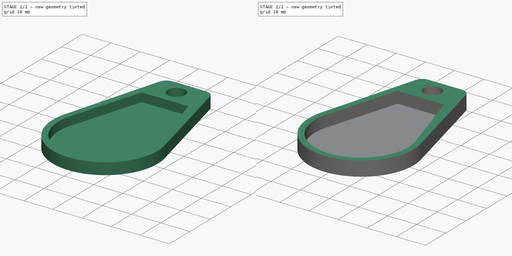
[diagram: build sequence overview — one tinted view per stage of 2, left to right]
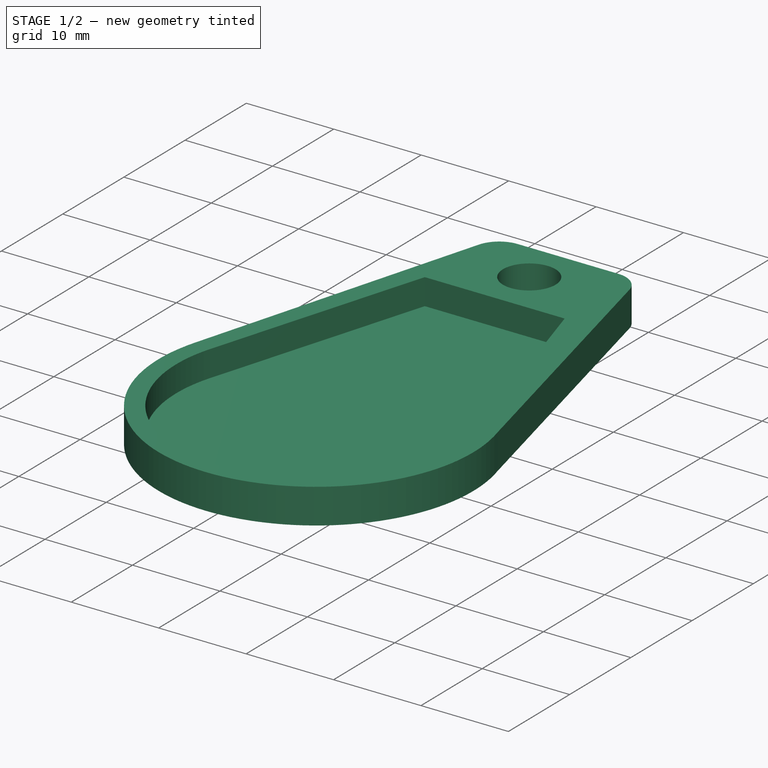
[diagram: stage 1 of 2 — iso view after this stage's code; geometry added in this stage tinted green]
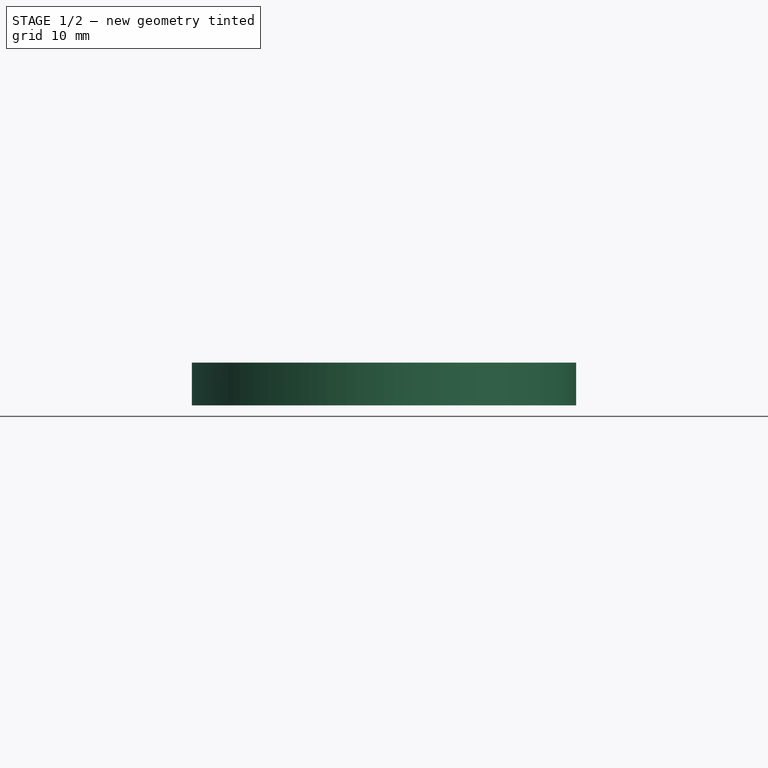
[diagram: stage 1 of 2 — front view after this stage's code; geometry added in this stage tinted green]
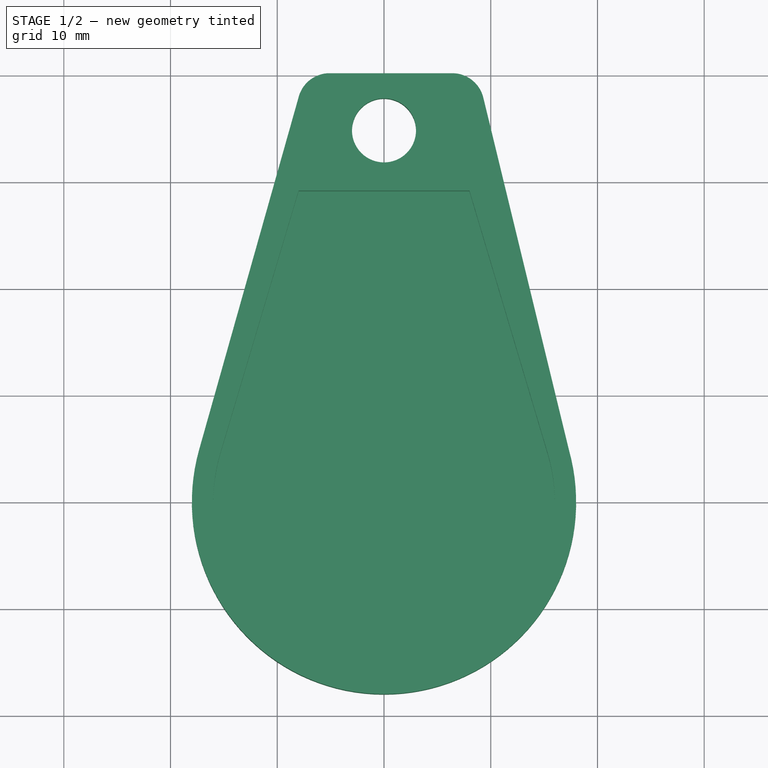
[diagram: stage 1 of 2 — top view after this stage's code; geometry added in this stage tinted green]
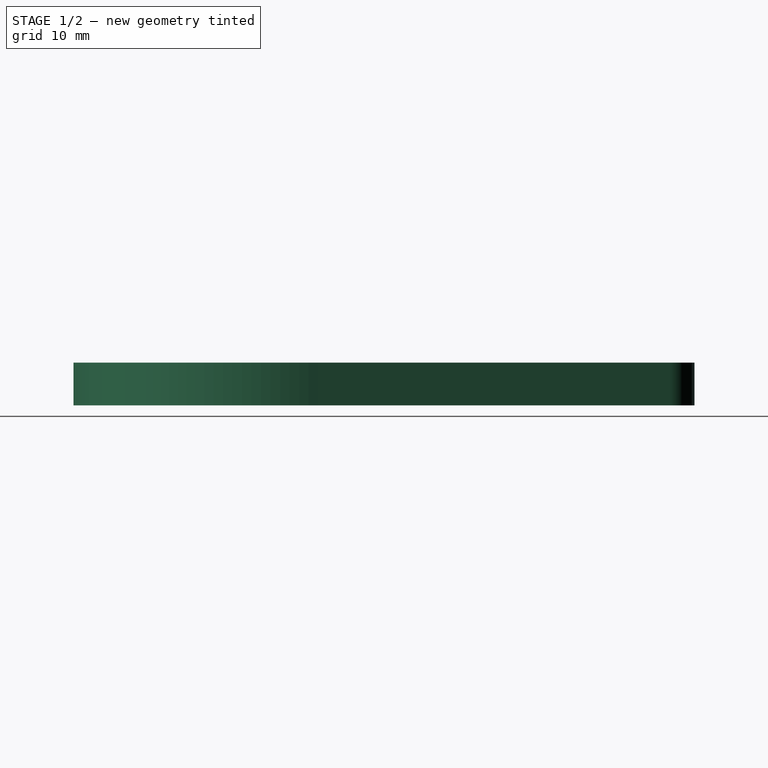
[diagram: stage 1 of 2 — right view after this stage's code; geometry added in this stage tinted green]
FCSTD DOCUMENT  (FreeCAD 0.18.4R)
Label: bingkey_holder
License: All rights reserved
LicenseURL: http://en.wikipedia.org/wiki/All_rights_reserved
objects: Sketcher::SketchObject×2, PartDesign::Pad×2, PartDesign::Body×2, Part::MultiFuse×1, App::Part×1
note: 9 computed .brp shape members not serialized (recipe doc carries the construction recipe); baked Part::Feature solids carry a one-line shape summary decoded from their .brp

FEATURE [Sketcher::SketchObject] Sketch
  MapMode = 5
  Support = -> [XY_Plane001]
  sketch-geometry (20):
    g0: LineSegment StartX=-15.3333 StartY=4.57056 StartZ=0 EndX=-8 EndY=29.1743 EndZ=0
    g1: LineSegment StartX=-8 StartY=29.1743 StartZ=0 EndX=8 EndY=29.1743 EndZ=0
    g2: LineSegment StartX=8 StartY=29.1743 StartZ=0 EndX=15.3333 EndY=4.57056 EndZ=0
    g3: GeomPoint X=15.3334 Y=4.57013 Z=0
    g4: GeomPoint X=15.3334 Y=4.57013 Z=0
    g5: GeomPoint X=15.3334 Y=4.57013 Z=0
    g6: GeomPoint X=0 Y=29.1743 Z=0
    g7: GeomPoint X=0 Y=-2.8257 Z=0
    g8: ArcOfCircle CenterX=0 CenterY=0 CenterZ=0 NormalX=0 NormalY=0 NormalZ=1 AngleXU=0 Radius=16 StartAngle=2.8519 EndAngle=6.57288
    g9: LineSegment StartX=-17.3236 StartY=4.8879 StartZ=0 EndX=-7.9825 EndY=37.9944 EndZ=0
    g10: LineSegment StartX=-5.09523 StartY=40.1798 StartZ=0 EndX=6.38904 EndY=40.1798 EndZ=0
    g11: LineSegment StartX=9.3042 StartY=37.8882 StartZ=0 EndX=17.3236 EndY=4.8879 EndZ=0
    g12: GeomPoint X=-6.30443 Y=40.1798 Z=0
    g13: GeomPoint X=-6.32876 Y=8.17976 Z=0
    g14: ArcOfCircle CenterX=2e-16 CenterY=0 CenterZ=0 NormalX=0 NormalY=0 NormalZ=1 AngleXU=0 Radius=18 StartAngle=2.86659 EndAngle=6.55819
    g15: GeomPoint X=0 Y=-18 Z=0
    g16: GeomPoint X=0 Y=-16 Z=0
    g17: Circle CenterX=0 CenterY=34.8218 CenterZ=0 NormalX=0 NormalY=0 NormalZ=1 AngleXU=0 Radius=3
    g18: ArcOfCircle CenterX=-5.09523 CenterY=37.1798 CenterZ=0 NormalX=0 NormalY=0 NormalZ=1 AngleXU=0 Radius=3 StartAngle=1.5708 EndAngle=2.86659
    g19: ArcOfCircle CenterX=6.38904 CenterY=37.1798 CenterZ=0 NormalX=0 NormalY=0 NormalZ=1 AngleXU=0 Radius=3 StartAngle=0.23839 EndAngle=1.5708
  constraints (37):
    c: Coincident(g0,g1)
    c: Coincident(g1,g2)
    c: Coincident(g5,g4)
    c: Coincident(g3,g4)
    c: Symmetric(g1,g0,g-2)
    c: DistanceX(g1,g1) = 16
    c: PointOnObject(g6,g1)
    c: DistanceX(g-1,g6) = 0
    c: DistanceX(g-1,g7) = 0
    c: DistanceY(g7,g6) = 32
    c: Coincident(g8,g-1)
    c: Radius(g8) = 16
    c: PointOnObject(g3,g8)
    c: Coincident(g8,g0)
    c: Coincident(g8,g2)
    c: PointOnObject(g12,g10)
    c: DistanceY(g13,g12) = 32
    c: Radius(g14) = 18
    c: Tangent(g9,g14)
    c: Coincident(g14,g9)
    c: Coincident(g14,g11)
    c: Symmetric(g9,g11,g-2)
    c: Symmetric(g0,g2,g-2)
    c: PointOnObject(g15,g14)
    c: DistanceX(g-1,g15) = 0
    c: PointOnObject(g16,g8)
    c: DistanceX(g-1,g16) = 0
    c: DistanceY(g15,g16) = 2
    c: PointOnObject(g17,g-2)
    c: Radius(g17) = 3
    c: Tangent(g9,g18) = 1.5708
    c: Tangent(g10,g18) = 1.5708
    c: Tangent(g10,g19) = 1.5708
    c: Tangent(g11,g19) = 1.5708
    c: Radius(g19) = 3
    c: Horizontal(g10)
    c: Equal(g18,g19)
FEATURE [PartDesign::Pad] Pad
  Length = 4
  Length2 = 100
  Profile = -> Sketch
  Type = 0
FEATURE [PartDesign::Body] Body  label="frame body"
  Group = -> [Sketch,Pad]
  Origin = -> Origin001
  Placement = pos=(0,0,1) rot=(0,0,1;0rad)
  Tip = -> Pad
FEATURE [Sketcher::SketchObject] Sketch003
  MapMode = 5
  Support = -> [XY_Plane002]
  sketch-geometry (13):
    g0: GeomPoint X=0 Y=29.1743 Z=0
    g1: GeomPoint X=0 Y=-2.8257 Z=0
    g2: LineSegment StartX=-17.3236 StartY=4.8879 StartZ=0 EndX=-7.9825 EndY=37.9944 EndZ=0
    g3: LineSegment StartX=-5.09523 StartY=40.1798 StartZ=0 EndX=6.38904 EndY=40.1798 EndZ=0
    g4: LineSegment StartX=9.3042 StartY=37.8882 StartZ=0 EndX=17.3236 EndY=4.8879 EndZ=0
    g5: GeomPoint X=-6.30443 Y=40.1798 Z=0
    g6: GeomPoint X=-6.32876 Y=8.17976 Z=0
    g7: ArcOfCircle CenterX=2e-16 CenterY=0 CenterZ=0 NormalX=0 NormalY=0 NormalZ=1 AngleXU=0 Radius=18 StartAngle=2.86659 EndAngle=6.55819
    g8: GeomPoint X=0 Y=-18 Z=0
    g9: GeomPoint X=0 Y=-16 Z=0
    g10: Circle CenterX=0 CenterY=34.8218 CenterZ=0 NormalX=0 NormalY=0 NormalZ=1 AngleXU=0 Radius=3
    g11: ArcOfCircle CenterX=-5.09523 CenterY=37.1798 CenterZ=0 NormalX=0 NormalY=0 NormalZ=1 AngleXU=0 Radius=3 StartAngle=1.5708 EndAngle=2.86659
    g12: ArcOfCircle CenterX=6.38904 CenterY=37.1798 CenterZ=0 NormalX=0 NormalY=0 NormalZ=1 AngleXU=0 Radius=3 StartAngle=0.23839 EndAngle=1.5708
  constraints (23):
    c: DistanceX(g-1,g0) = 0
    c: DistanceX(g-1,g1) = 0
    c: DistanceY(g1,g0) = 32
    c: PointOnObject(g5,g3)
    c: DistanceY(g6,g5) = 32
    c: Radius(g7) = 18
    c: Tangent(g2,g7)
    c: Coincident(g7,g2)
    c: Coincident(g7,g4)
    c: Symmetric(g2,g4,g-2)
    c: PointOnObject(g8,g7)
    c: DistanceX(g-1,g8) = 0
    c: DistanceX(g-1,g9) = 0
    c: DistanceY(g8,g9) = 2
    c: PointOnObject(g10,g-2)
    c: Radius(g10) = 3
    c: Tangent(g2,g11) = 1.5708
    c: Tangent(g3,g11) = 1.5708
    c: Tangent(g3,g12) = 1.5708
    c: Tangent(g4,g12) = 1.5708
    c: Radius(g12) = 3
    c: Horizontal(g3)
    c: Equal(g11,g12)
FEATURE [PartDesign::Pad] Pad001
  Length = 1
  Length2 = 100
  Profile = -> Sketch003
  Type = 0
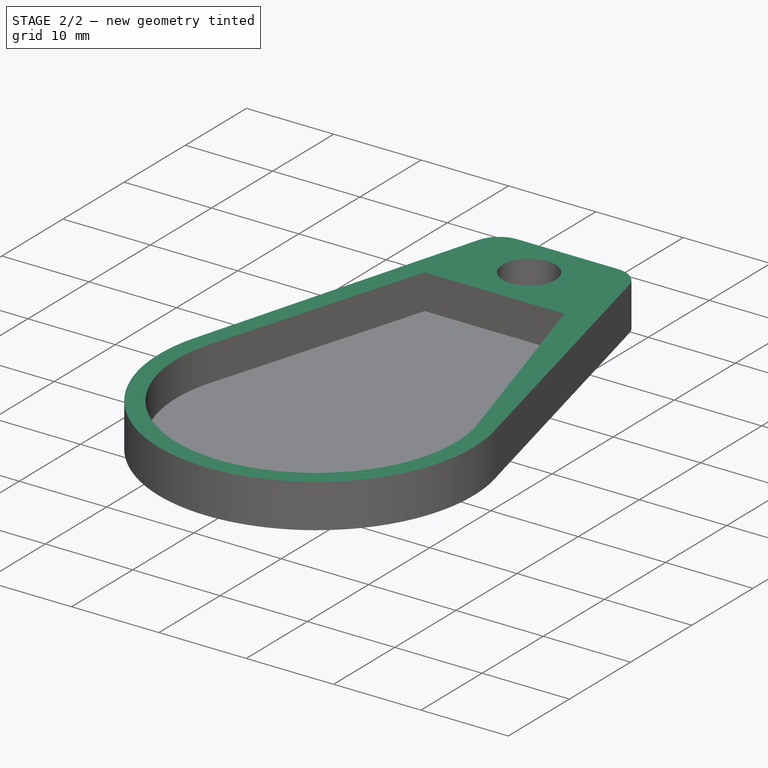
[diagram: stage 2 of 2 — iso view after this stage's code; geometry added in this stage tinted green]
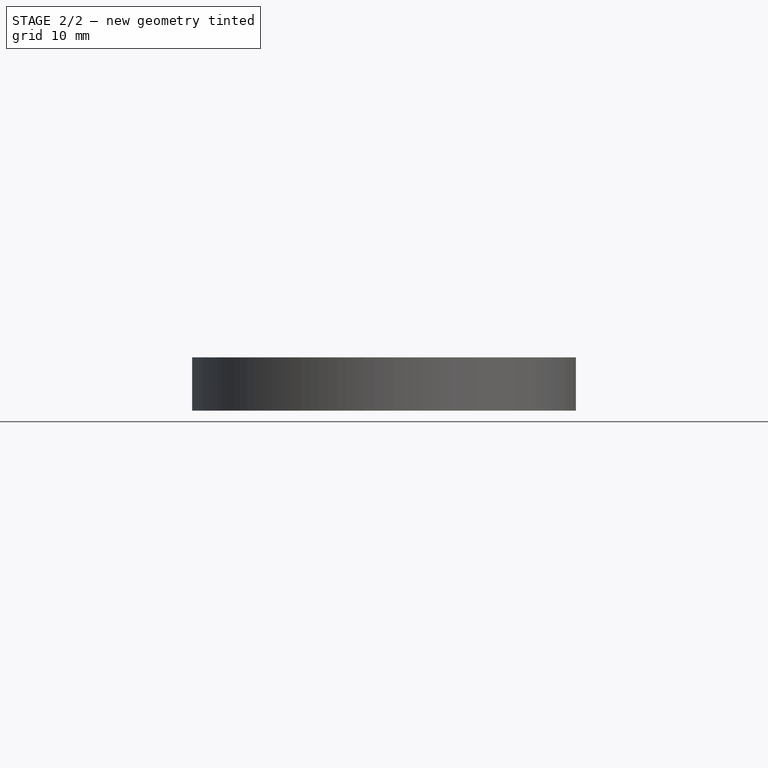
[diagram: stage 2 of 2 — front view after this stage's code; geometry added in this stage tinted green]
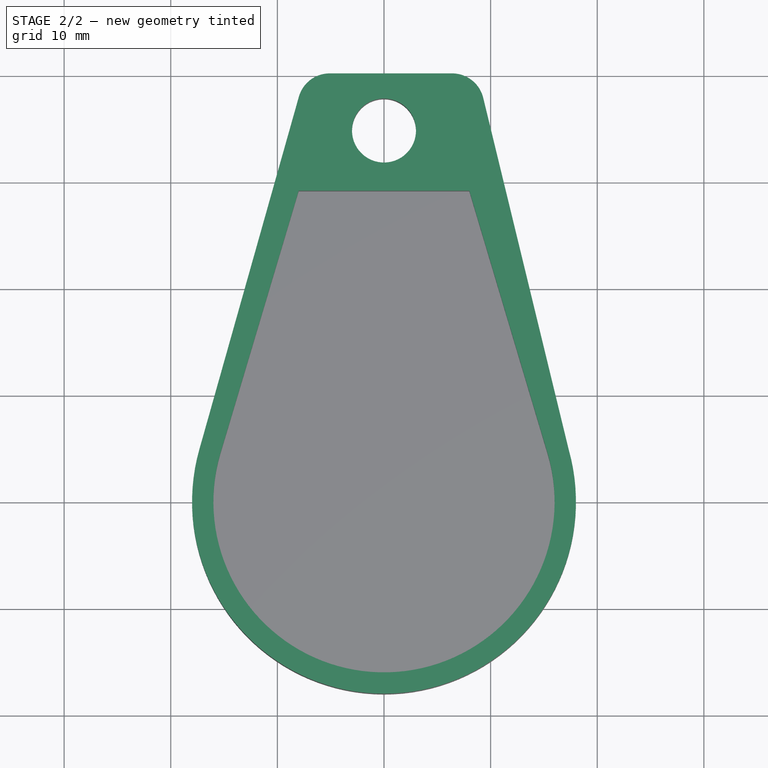
[diagram: stage 2 of 2 — top view after this stage's code; geometry added in this stage tinted green]
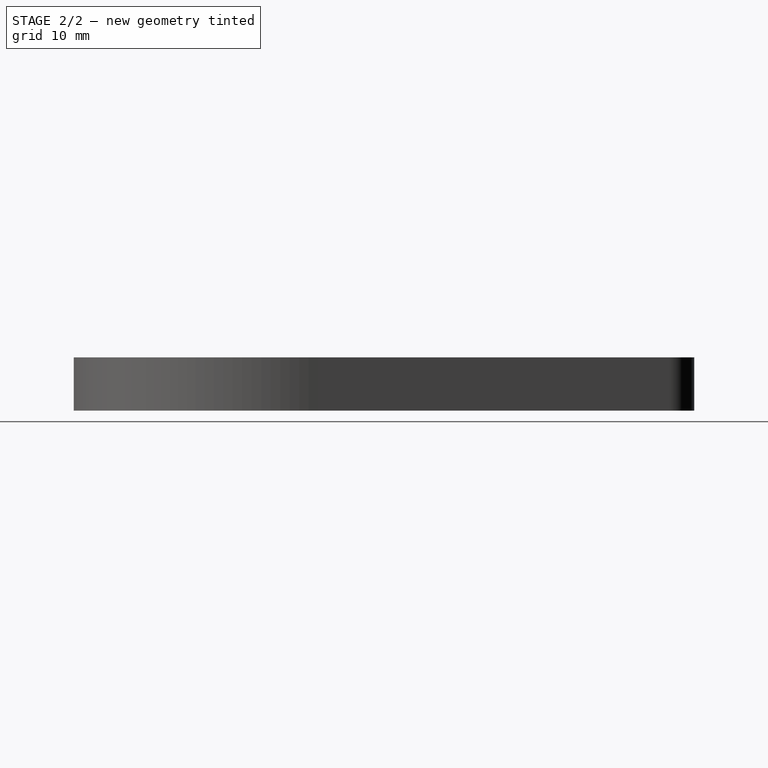
[diagram: stage 2 of 2 — right view after this stage's code; geometry added in this stage tinted green]
FEATURE [PartDesign::Body] Body001  label="bottom body"
  Group = -> [Sketch003,Pad001]
  Origin = -> Origin002
  Tip = -> Pad001
FEATURE [Part::MultiFuse] Fusion
  Shapes = -> [Body,Body001]
FEATURE [App::Part] Part  label="bing key part"
  Group = -> [Body,Body001,Fusion]
  Origin = -> Origin
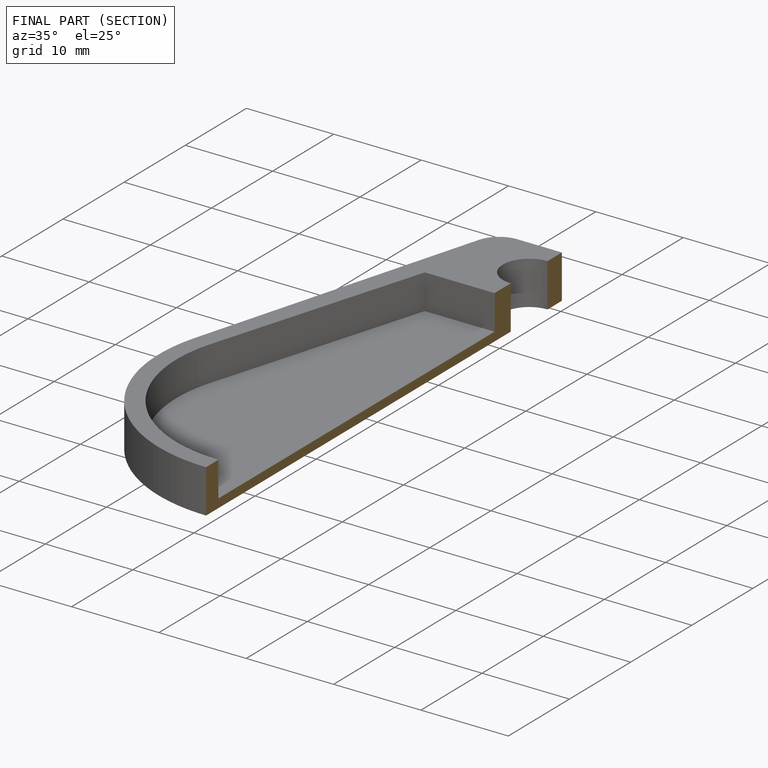
[diagram: finished part — half-section view (interior)]
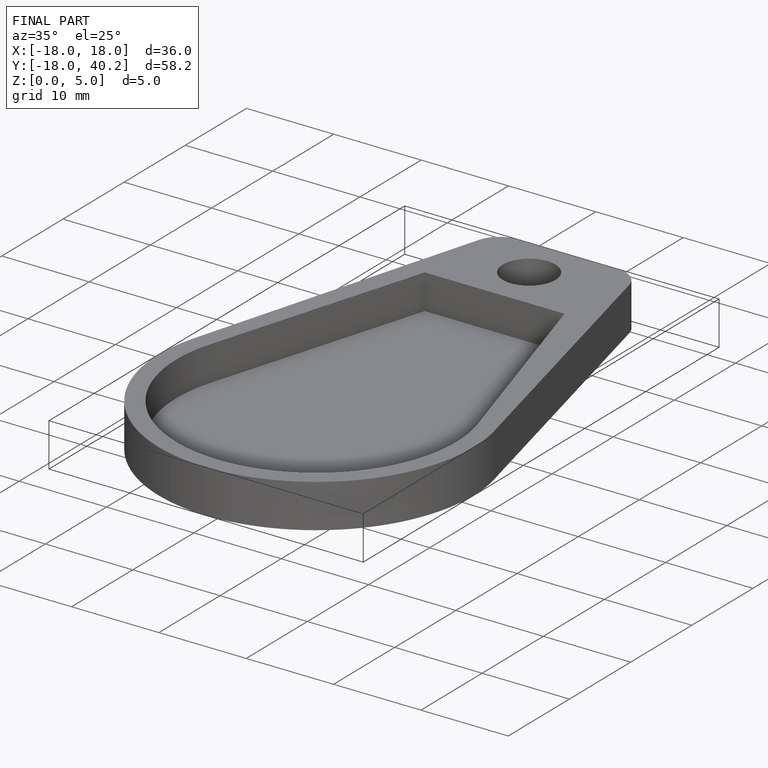
[diagram: finished part — iso view with bounding-box wireframe]
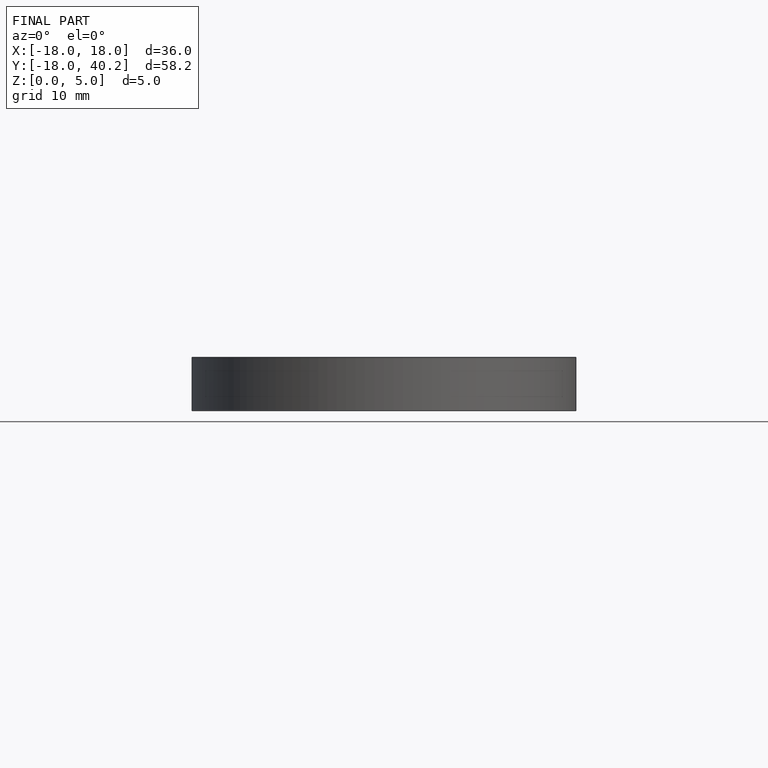
[diagram: finished part — front view with bounding-box wireframe]
